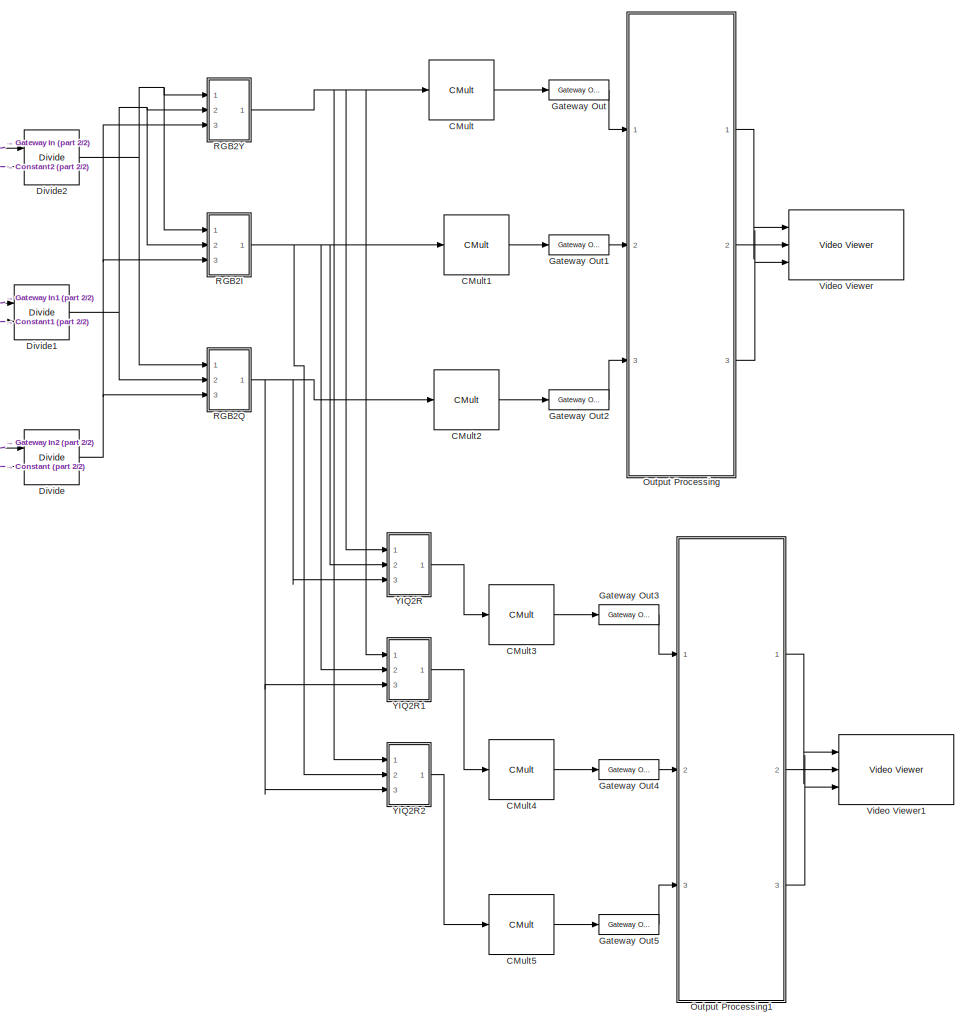
[diagram: root canvas - part 1/2, center side, full height]
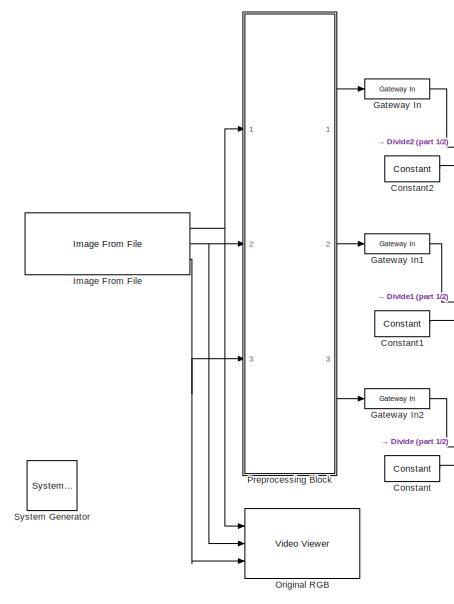
[diagram: root canvas - part 2/2, top left region]
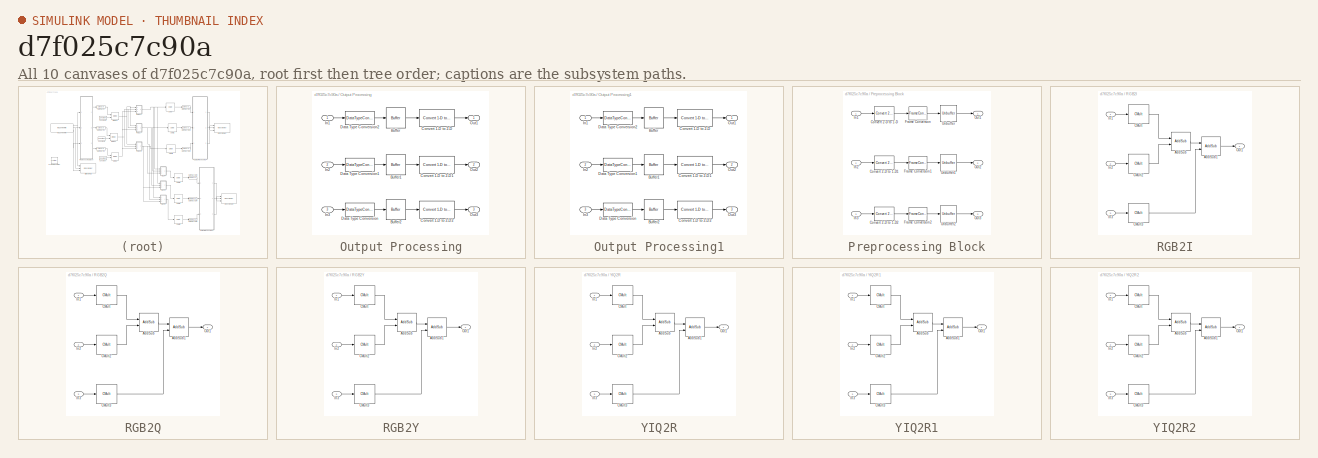
[diagram: thumbnail index - all 10 canvases of the model, root first then tree order]
MODEL slx_d7f025c7c90a
KIND model
BLOCK [Reference]  System Generator  REF=xbsIndex_r4/ System Generator
  AttributesFormatString = System\nGenerator
  Impl_file = ISE Defaults
  Ports = []
  SourceBlock = xbsIndex_r4/ System Generator
  SourceType = Xilinx System Generator Block
  Synth_file = XST Defaults
  Tag = genX
  UserDataPersistent = on
  block_type = sysgen
  clock_wrapper = Clock Enables
  core_generation = According to Block Masks
  dbl_ovrd = According to Block Masks
  dcm_input_clock_period = 10
  deprecated_control = off
  directory = ./netlist
  eval_field = 0
  has_advanced_control = 0
  incr_netlist = off
  infoedit = System Generator
  package = ff1156
  part = xc6vlx130t
  proj_type = Project Navigator
  run_coregen = off
  sg_icon_stat = 50,50,0,0,token,white,0,58c5b5770fe5f7c311f53dbc6e73f0f6,right,,[ ],[ ]
  sg_mask_display = fprintf('','COMMENT: begin icon graphics');\npatch([0 50 50 0 0 ],[0 0 50 50 0 ],[1 1 1 ]);\npatch([1.6375 16.81 27.31 37.81 48.31 27.31 12.1375 1.6375 ],[36.655 36.655 47.155 36.655 47.155 47.155 47.155 36.655 ],[0.933333 0.203922 0.141176 ]);\npatch([12.1375 27.31 16.81 1.6375 12.1375 ],[26.155 26.155 36.655 36.655 26.155 ],[0.698039 0.0313725 0.219608 ]);\npatch([1.6375 16.81 27.31 12.1375 1.6375 ]...<+327ch>
  sggui_pos = 691,174,464,470
  simulink_period = 1
  speed = -1
  synthesis_tool = XST
  sysclk_period = 10
  testbench = off
  trim_vbits = Everywhere in SubSystem
  xilinxfamily = virtex6
BLOCK [Reference] CMult  REF=xbsIndex_r4/CMult
  Ports = [1, 1]
  SourceBlock = xbsIndex_r4/CMult
  SourceType = Xilinx Constant Multiplier Block
  arith_type = Signed  (2's comp)
  bin_pt = 14
  block_type = cmult
  const = 255
  const_bin_pt = 14
  const_n_bits = 16
  dbl_ovrd = off
  en = off
  exp_bits = 8
  float_type = Double
  fraction_bits = 24
  gui_display_data_type = Floating-point
  has_advanced_control = 0
  latency = 0
  mem_type = Distributed RAM
  n_bits = 16
  overflow = Wrap
  pipeline = off
  precision = Full
  quantization = Truncate
  sg_icon_stat = 65,60,1,1,white,blue,2,9597a986,right,,[ ],[ ]
  sg_mask_display = fprintf('','COMMENT: begin icon graphics');\npatch([0 65 0 0 ],[0 30 60 0 ],[0.77 0.82 0.91 ]);\nplot([0 65 0 0 ],[0 30 60 0 ]);\npatch([5.07 12.006 16.806 21.606 26.406 16.806 9.87 5.07 ],[35.328 35.328 40.128 35.328 40.128 40.128 40.128 35.328 ],[1 1 1 ]);\npatch([9.87 16.806 12.006 5.07 9.87 ],[30.528 30.528 35.328 35.328 30.528 ],[0.931 0.946 0.973 ]);\npatch([5.07 12.006 16.806 9.87 5.07 ],[25.728...<+340ch>  <repeated x6 — deduplicated; at blocks: CMult, CMult1, CMult2, CMult3, CMult4, CMult5>
  sggui_pos = -1,-1,-1,-1
  use_behavioral_HDL = off
  xl_area = [0,0,0,0,0,0,0]
  xl_use_area = off
BLOCK [Reference] CMult1  REF=xbsIndex_r4/CMult
  Ports = [1, 1]
  SourceBlock = xbsIndex_r4/CMult
  SourceType = Xilinx Constant Multiplier Block
  arith_type = Signed  (2's comp)
  bin_pt = 14
  block_type = cmult
  const = 255
  const_bin_pt = 14
  const_n_bits = 16
  dbl_ovrd = off
  en = off
  exp_bits = 8
  float_type = Double
  fraction_bits = 24
  gui_display_data_type = Floating-point
  has_advanced_control = 0
  latency = 0
  mem_type = Distributed RAM
  n_bits = 16
  overflow = Wrap
  pipeline = off
  precision = Full
  quantization = Truncate
  sg_icon_stat = 65,60,1,1,white,blue,2,9597a986,right,,[ ],[ ]
  sggui_pos = -1,-1,-1,-1
  use_behavioral_HDL = off
  xl_area = [0,0,0,0,0,0,0]
  xl_use_area = off
BLOCK [Reference] CMult2  REF=xbsIndex_r4/CMult
  Ports = [1, 1]
  SourceBlock = xbsIndex_r4/CMult
  SourceType = Xilinx Constant Multiplier Block
  arith_type = Signed  (2's comp)
  bin_pt = 14
  block_type = cmult
  const = 255
  const_bin_pt = 14
  const_n_bits = 16
  dbl_ovrd = off
  en = off
  exp_bits = 8
  float_type = Double
  fraction_bits = 24
  gui_display_data_type = Floating-point
  has_advanced_control = 0
  latency = 0
  mem_type = Distributed RAM
  n_bits = 16
  overflow = Wrap
  pipeline = off
  precision = Full
  quantization = Truncate
  sg_icon_stat = 65,60,1,1,white,blue,2,9597a986,right,,[ ],[ ]
  sggui_pos = -1,-1,-1,-1
  use_behavioral_HDL = off
  xl_area = [0,0,0,0,0,0,0]
  xl_use_area = off
BLOCK [Reference] CMult3  REF=xbsIndex_r4/CMult
  Ports = [1, 1]
  SourceBlock = xbsIndex_r4/CMult
  SourceType = Xilinx Constant Multiplier Block
  arith_type = Signed  (2's comp)
  bin_pt = 14
  block_type = cmult
  const = 255
  const_bin_pt = 14
  const_n_bits = 16
  dbl_ovrd = off
  en = off
  exp_bits = 8
  float_type = Double
  fraction_bits = 24
  gui_display_data_type = Floating-point
  has_advanced_control = 0
  latency = 0
  mem_type = Distributed RAM
  n_bits = 16
  overflow = Wrap
  pipeline = off
  precision = Full
  quantization = Truncate
  sg_icon_stat = 65,60,1,1,white,blue,2,9597a986,right,,[ ],[ ]
  sggui_pos = -1,-1,-1,-1
  use_behavioral_HDL = off
  xl_area = [0,0,0,0,0,0,0]
  xl_use_area = off
BLOCK [Reference] CMult4  REF=xbsIndex_r4/CMult
  Ports = [1, 1]
  SourceBlock = xbsIndex_r4/CMult
  SourceType = Xilinx Constant Multiplier Block
  arith_type = Signed  (2's comp)
  bin_pt = 14
  block_type = cmult
  const = 255
  const_bin_pt = 14
  const_n_bits = 16
  dbl_ovrd = off
  en = off
  exp_bits = 8
  float_type = Double
  fraction_bits = 24
  gui_display_data_type = Floating-point
  has_advanced_control = 0
  latency = 0
  mem_type = Distributed RAM
  n_bits = 16
  overflow = Wrap
  pipeline = off
  precision = Full
  quantization = Truncate
  sg_icon_stat = 65,60,1,1,white,blue,2,9597a986,right,,[ ],[ ]
  sggui_pos = -1,-1,-1,-1
  use_behavioral_HDL = off
  xl_area = [0,0,0,0,0,0,0]
  xl_use_area = off
BLOCK [Reference] CMult5  REF=xbsIndex_r4/CMult
  Ports = [1, 1]
  SourceBlock = xbsIndex_r4/CMult
  SourceType = Xilinx Constant Multiplier Block
  arith_type = Signed  (2's comp)
  bin_pt = 14
  block_type = cmult
  const = 255
  const_bin_pt = 14
  const_n_bits = 16
  dbl_ovrd = off
  en = off
  exp_bits = 8
  float_type = Double
  fraction_bits = 24
  gui_display_data_type = Floating-point
  has_advanced_control = 0
  latency = 0
  mem_type = Distributed RAM
  n_bits = 16
  overflow = Wrap
  pipeline = off
  precision = Full
  quantization = Truncate
  sg_icon_stat = 65,60,1,1,white,blue,2,9597a986,right,,[ ],[ ]
  sggui_pos = -1,-1,-1,-1
  use_behavioral_HDL = off
  xl_area = [0,0,0,0,0,0,0]
  xl_use_area = off
BLOCK [Reference] Constant  REF=xbsIndex_r4/Constant
  Ports = [0, 1]
  SourceBlock = xbsIndex_r4/Constant
  SourceType = Xilinx Constant Block Block
  arith_type = Floating-point
  bin_pt = 14
  block_type = constant
  carry = CIN
  const = 255
  dbl_ovrd = off
  dsp48_infoedit = The use of this block for DSP48 instructions is deprecated.  Please use the Opmode block.
  equ = P=C
  exp_width = 8
  explicit_period = off
  frac_width = 24
  gui_display_data_type = Floating-point
  has_advanced_control = 0
  inp1 = P
  inp2 = PCIN>>17
  n_bits = 16
  opr = +
  opselect = C
  period = 1
  preci_type = Double
  sg_icon_stat = 55,26,0,1,white,blue,0,13fa6234,right,,[ ],[ ]
  sg_mask_display = fprintf('','COMMENT: begin icon graphics');\npatch([0 55 55 0 0 ],[0 0 26 26 0 ],[0.77 0.82 0.91 ]);\nplot([0 55 55 0 0 ],[0 0 26 26 0 ]);\npatch([20.325 24.66 27.66 30.66 33.66 27.66 23.325 20.325 ],[16.33 16.33 19.33 16.33 19.33 19.33 19.33 16.33 ],[1 1 1 ]);\npatch([23.325 27.66 24.66 20.325 23.325 ],[13.33 13.33 16.33 16.33 13.33 ],[0.931 0.946 0.973 ]);\npatch([20.325 24.66 27.66 23.325 20.325 ],[...<+325ch>  <repeated x3 — deduplicated; at blocks: Constant, Constant1, Constant2>
  sggui_pos = -1,-1,-1,-1
BLOCK [Reference] Constant1  REF=xbsIndex_r4/Constant
  Ports = [0, 1]
  SourceBlock = xbsIndex_r4/Constant
  SourceType = Xilinx Constant Block Block
  arith_type = Floating-point
  bin_pt = 14
  block_type = constant
  carry = CIN
  const = 255
  dbl_ovrd = off
  dsp48_infoedit = The use of this block for DSP48 instructions is deprecated.  Please use the Opmode block.
  equ = P=C
  exp_width = 8
  explicit_period = off
  frac_width = 24
  gui_display_data_type = Floating-point
  has_advanced_control = 0
  inp1 = P
  inp2 = PCIN>>17
  n_bits = 16
  opr = +
  opselect = C
  period = 1
  preci_type = Double
  sg_icon_stat = 55,26,0,1,white,blue,0,13fa6234,right,,[ ],[ ]
  sggui_pos = -1,-1,-1,-1
BLOCK [Reference] Constant2  REF=xbsIndex_r4/Constant
  Ports = [0, 1]
  SourceBlock = xbsIndex_r4/Constant
  SourceType = Xilinx Constant Block Block
  arith_type = Floating-point
  bin_pt = 14
  block_type = constant
  carry = CIN
  const = 255
  dbl_ovrd = off
  dsp48_infoedit = The use of this block for DSP48 instructions is deprecated.  Please use the Opmode block.
  equ = P=C
  exp_width = 8
  explicit_period = off
  frac_width = 24
  gui_display_data_type = Floating-point
  has_advanced_control = 0
  inp1 = P
  inp2 = PCIN>>17
  n_bits = 16
  opr = +
  opselect = C
  period = 1
  preci_type = Double
  sg_icon_stat = 55,26,0,1,white,blue,0,13fa6234,right,,[ ],[ ]
  sggui_pos = -1,-1,-1,-1
BLOCK [Reference] Divide  REF=xbsIndex_r4/Divide
  Ports = [2, 1]
  SourceBlock = xbsIndex_r4/Divide
  SourceType = Xilinx Divider Block
  algorithm_type = High_Radix
  axi_optimize_goal = Resources
  block_type = divide
  en = off
  flow_control = NonBlocking
  fpo_op_type = mergeddivide
  fractional_width = 16
  has_a_tlast = off
  has_a_tuser = off
  has_advanced_control = 0
  has_b_tlast = off
  has_b_tuser = off
  has_divide_by_zero = off
  has_invalid_op = off
  has_overflow = off
  has_result_tready = off
  has_underflow = off
  infoedit = Blocking: Wait for data on all inputs, allow back-pressure.<br>NonBlocking: operate every cycle in which all inputs are valid, no back-pressure.
  infoedit1 = Specify output fraction-width for Fixed-point division.
  latency = 0
  rate = 1
  result_tlast_behv = Pass_A_TLAST
  sg_icon_stat = 55,55,2,1,white,blue,0,857da21d,right,,[ ],[ ]
  sg_mask_display = fprintf('','COMMENT: begin icon graphics');\npatch([0 55 55 0 0 ],[0 0 55 55 0 ],[0.77 0.82 0.91 ]);\nplot([0 55 55 0 0 ],[0 0 55 55 0 ]);\npatch([11.425 21.54 28.54 35.54 42.54 28.54 18.425 11.425 ],[34.77 34.77 41.77 34.77 41.77 41.77 41.77 34.77 ],[1 1 1 ]);\npatch([18.425 28.54 21.54 11.425 18.425 ],[27.77 27.77 34.77 34.77 27.77 ],[0.931 0.946 0.973 ]);\npatch([11.425 21.54 28.54 18.425 11.425 ],[...<+412ch>  <repeated x3 — deduplicated; at blocks: Divide, Divide1, Divide2>
  sggui_pos = -1,-1,-1,-1
  xl_area = [0,0,0,0,0,0,0]
  xl_use_area = off
BLOCK [Reference] Divide1  REF=xbsIndex_r4/Divide
  Ports = [2, 1]
  SourceBlock = xbsIndex_r4/Divide
  SourceType = Xilinx Divider Block
  algorithm_type = High_Radix
  axi_optimize_goal = Resources
  block_type = divide
  en = off
  flow_control = NonBlocking
  fpo_op_type = mergeddivide
  fractional_width = 16
  has_a_tlast = off
  has_a_tuser = off
  has_advanced_control = 0
  has_b_tlast = off
  has_b_tuser = off
  has_divide_by_zero = off
  has_invalid_op = off
  has_overflow = off
  has_result_tready = off
  has_underflow = off
  infoedit = Blocking: Wait for data on all inputs, allow back-pressure.<br>NonBlocking: operate every cycle in which all inputs are valid, no back-pressure.
  infoedit1 = Specify output fraction-width for Fixed-point division.
  latency = 0
  rate = 1
  result_tlast_behv = Pass_A_TLAST
  sg_icon_stat = 55,55,2,1,white,blue,0,857da21d,right,,[ ],[ ]
  sggui_pos = -1,-1,-1,-1
  xl_area = [0,0,0,0,0,0,0]
  xl_use_area = off
BLOCK [Reference] Divide2  REF=xbsIndex_r4/Divide
  Ports = [2, 1]
  SourceBlock = xbsIndex_r4/Divide
  SourceType = Xilinx Divider Block
  algorithm_type = High_Radix
  axi_optimize_goal = Resources
  block_type = divide
  en = off
  flow_control = NonBlocking
  fpo_op_type = mergeddivide
  fractional_width = 16
  has_a_tlast = off
  has_a_tuser = off
  has_advanced_control = 0
  has_b_tlast = off
  has_b_tuser = off
  has_divide_by_zero = off
  has_invalid_op = off
  has_overflow = off
  has_result_tready = off
  has_underflow = off
  infoedit = Blocking: Wait for data on all inputs, allow back-pressure.<br>NonBlocking: operate every cycle in which all inputs are valid, no back-pressure.
  infoedit1 = Specify output fraction-width for Fixed-point division.
  latency = 0
  rate = 1
  result_tlast_behv = Pass_A_TLAST
  sg_icon_stat = 55,55,2,1,white,blue,0,857da21d,right,,[ ],[ ]
  sggui_pos = -1,-1,-1,-1
  xl_area = [0,0,0,0,0,0,0]
  xl_use_area = off
BLOCK [Reference] Gateway In  REF=xbsIndex_r4/Gateway In
  ADCChannel = '1'
  LOCs = {}
  Ports = [1, 1]
  SourceBlock = xbsIndex_r4/Gateway In
  SourceType = Xilinx Gateway In Block
  UseAsADC = off
  arith_type = Floating-point
  bin_pt = 0
  block_type = gatewayin
  dbl_ovrd = off
  exp_width = 8
  frac_width = 24
  gui_display_data_type = Floating-point
  has_advanced_control = 0
  hdl_port = on
  infoedit = Gateway in block.  Converts inputs of type Simulink integer, single, double and fixed-point to  Xilinx fixed-point or floating-point data type.<br><br>Hardware notes:  In hardware these blocks become top level input ports.  <repeated x3 — deduplicated; at blocks: Gateway In, Gateway In1, Gateway In2>
  inherit_from_input = off
  locs_specified = off
  n_bits = 8
  overflow = Saturate
  period = 1
  preci_type = Double
  quantization = Round  (unbiased: +/- Inf)
  sg_icon_stat = 65,20,1,1,white,yellow,1,00d3666e,right,,[ ],[ ]
  sg_mask_display = fprintf('','COMMENT: begin icon graphics');\npatch([0 65 65 0 0 ],[0 0 20 20 0 ],[0.95 0.93 0.65 ]);\nplot([0 65 65 0 0 ],[0 0 20 20 0 ]);\npatch([27.55 30.44 32.44 34.44 36.44 32.44 29.55 27.55 ],[12.22 12.22 14.22 12.22 14.22 14.22 14.22 12.22 ],[1 1 1 ]);\npatch([29.55 32.44 30.44 27.55 29.55 ],[10.22 10.22 12.22 12.22 10.22 ],[0.985 0.979 0.895 ]);\npatch([27.55 30.44 32.44 29.55 27.55 ],[8.22 8.22...<+383ch>  <repeated x3 — deduplicated; at blocks: Gateway In, Gateway In1, Gateway In2>
  sggui_pos = -1,-1,-1,-1
  timing_constraint = None
  xl_area = [0,0,0,0,0,0,0]
  xl_use_area = off
BLOCK [Reference] Gateway In1  REF=xbsIndex_r4/Gateway In
  ADCChannel = '1'
  LOCs = {}
  Ports = [1, 1]
  SourceBlock = xbsIndex_r4/Gateway In
  SourceType = Xilinx Gateway In Block
  UseAsADC = off
  arith_type = Floating-point
  bin_pt = 0
  block_type = gatewayin
  dbl_ovrd = off
  exp_width = 8
  frac_width = 24
  gui_display_data_type = Floating-point
  has_advanced_control = 0
  hdl_port = on
  inherit_from_input = off
  locs_specified = off
  n_bits = 8
  overflow = Saturate
  period = 1
  preci_type = Double
  quantization = Round  (unbiased: +/- Inf)
  sg_icon_stat = 65,20,1,1,white,yellow,1,00d3666e,right,,[ ],[ ]
  sggui_pos = -1,-1,-1,-1
  timing_constraint = None
  xl_area = [0,0,0,0,0,0,0]
  xl_use_area = off
BLOCK [Reference] Gateway In2  REF=xbsIndex_r4/Gateway In
  ADCChannel = '1'
  LOCs = {}
  Ports = [1, 1]
  SourceBlock = xbsIndex_r4/Gateway In
  SourceType = Xilinx Gateway In Block
  UseAsADC = off
  arith_type = Floating-point
  bin_pt = 0
  block_type = gatewayin
  dbl_ovrd = off
  exp_width = 8
  frac_width = 24
  gui_display_data_type = Floating-point
  has_advanced_control = 0
  hdl_port = on
  inherit_from_input = off
  locs_specified = off
  n_bits = 8
  overflow = Saturate
  period = 1
  preci_type = Double
  quantization = Round  (unbiased: +/- Inf)
  sg_icon_stat = 65,20,1,1,white,yellow,1,00d3666e,right,,[ ],[ ]
  sggui_pos = -1,-1,-1,-1
  timing_constraint = None
  xl_area = [0,0,0,0,0,0,0]
  xl_use_area = off
BLOCK [Reference] Gateway Out  REF=xbsIndex_r4/Gateway Out
  DACChannel = '1'
  LOCs = {}
  Ports = [1, 1]
  SourceBlock = xbsIndex_r4/Gateway Out
  SourceType = Xilinx Gateway Out Block
  UseAsDAC = off
  block_type = gatewayout
  has_advanced_control = 0
  hdl_port = on
  infoedit = Gateway out block.  Converts Xilinx fixed-point or floating-point type inputs into ouputs of type Simulink integer, single, double, or fixed-point.<br><br>Hardware notes:  In hardware these blocks become top level output ports or are discarded, depending on how they are configured.  <repeated x6 — deduplicated; at blocks: Gateway Out, Gateway Out1, Gateway Out2, Gateway Out3, Gateway Out4, Gateway Out5>
  inherit_from_input = on
  locs_specified = off
  sg_icon_stat = 60,20,1,1,white,yellow,1,cc31b7ac,right,,[ ],[ ]
  sg_mask_display = fprintf('','COMMENT: begin icon graphics');\npatch([0 60 60 0 0 ],[0 0 20 20 0 ],[0.95 0.93 0.65 ]);\nplot([0 60 60 0 0 ],[0 0 20 20 0 ]);\npatch([25.55 28.44 30.44 32.44 34.44 30.44 27.55 25.55 ],[12.22 12.22 14.22 12.22 14.22 14.22 14.22 12.22 ],[1 1 1 ]);\npatch([27.55 30.44 28.44 25.55 27.55 ],[10.22 10.22 12.22 12.22 10.22 ],[0.985 0.979 0.895 ]);\npatch([25.55 28.44 30.44 27.55 25.55 ],[8.22 8.22...<+384ch>  <repeated x6 — deduplicated; at blocks: Gateway Out, Gateway Out1, Gateway Out2, Gateway Out3, Gateway Out4, Gateway Out5>
  sggui_pos = -1,-1,-1,-1
  timing_constraint = None
  xl_area = [0,0,0,0,0,0,0]
  xl_use_area = off
BLOCK [Reference] Gateway Out1  REF=xbsIndex_r4/Gateway Out
  DACChannel = '1'
  LOCs = {}
  Ports = [1, 1]
  SourceBlock = xbsIndex_r4/Gateway Out
  SourceType = Xilinx Gateway Out Block
  UseAsDAC = off
  block_type = gatewayout
  has_advanced_control = 0
  hdl_port = on
  inherit_from_input = on
  locs_specified = off
  sg_icon_stat = 60,20,1,1,white,yellow,1,cc31b7ac,right,,[ ],[ ]
  sggui_pos = -1,-1,-1,-1
  timing_constraint = None
  xl_area = [0,0,0,0,0,0,0]
  xl_use_area = off
BLOCK [Reference] Gateway Out2  REF=xbsIndex_r4/Gateway Out
  DACChannel = '1'
  LOCs = {}
  Ports = [1, 1]
  SourceBlock = xbsIndex_r4/Gateway Out
  SourceType = Xilinx Gateway Out Block
  UseAsDAC = off
  block_type = gatewayout
  has_advanced_control = 0
  hdl_port = on
  inherit_from_input = on
  locs_specified = off
  sg_icon_stat = 60,20,1,1,white,yellow,1,cc31b7ac,right,,[ ],[ ]
  sggui_pos = -1,-1,-1,-1
  timing_constraint = None
  xl_area = [0,0,0,0,0,0,0]
  xl_use_area = off
BLOCK [Reference] Gateway Out3  REF=xbsIndex_r4/Gateway Out
  DACChannel = '1'
  LOCs = {}
  Ports = [1, 1]
  SourceBlock = xbsIndex_r4/Gateway Out
  SourceType = Xilinx Gateway Out Block
  UseAsDAC = off
  block_type = gatewayout
  has_advanced_control = 0
  hdl_port = on
  inherit_from_input = on
  locs_specified = off
  sg_icon_stat = 60,20,1,1,white,yellow,1,cc31b7ac,right,,[ ],[ ]
  sggui_pos = -1,-1,-1,-1
  timing_constraint = None
  xl_area = [0,0,0,0,0,0,0]
  xl_use_area = off
BLOCK [Reference] Gateway Out4  REF=xbsIndex_r4/Gateway Out
  DACChannel = '1'
  LOCs = {}
  Ports = [1, 1]
  SourceBlock = xbsIndex_r4/Gateway Out
  SourceType = Xilinx Gateway Out Block
  UseAsDAC = off
  block_type = gatewayout
  has_advanced_control = 0
  hdl_port = on
  inherit_from_input = on
  locs_specified = off
  sg_icon_stat = 60,20,1,1,white,yellow,1,cc31b7ac,right,,[ ],[ ]
  sggui_pos = -1,-1,-1,-1
  timing_constraint = None
  xl_area = [0,0,0,0,0,0,0]
  xl_use_area = off
BLOCK [Reference] Gateway Out5  REF=xbsIndex_r4/Gateway Out
  DACChannel = '1'
  LOCs = {}
  Ports = [1, 1]
  SourceBlock = xbsIndex_r4/Gateway Out
  SourceType = Xilinx Gateway Out Block
  UseAsDAC = off
  block_type = gatewayout
  has_advanced_control = 0
  hdl_port = on
  inherit_from_input = on
  locs_specified = off
  sg_icon_stat = 60,20,1,1,white,yellow,1,cc31b7ac,right,,[ ],[ ]
  sggui_pos = -1,-1,-1,-1
  timing_constraint = None
  xl_area = [0,0,0,0,0,0,0]
  xl_use_area = off
BLOCK [Reference] Image From File  REF=visionsources/Image From File
  FileName = <userpath>\Documents\MATLAB\4440\lena.jpg
  FractionLength = 15
  FractionLengthMode = User-defined
  ImageDataType = Inherit from input image
  OutPortLabels = R|G|B
  Ports = [0, 3]
  Signed = on
  SourceBlock = visionsources/Image From File
  SourceType = Image From File
  Tag = vipblks_nd
  Ts = inf
  WordLength = 16
  imagePorts = Separate color signals
  sdImageDataType = uint(8)
BLOCK [Reference] Original RGB  REF=visionsinks/Video Viewer
  AxisZoom = on
  DefaultConfigurationName = vipscopes.VideoViewerScopeCfg
  FigPos = [692 476 183 243]
  OpenAtMdlStart = on
  Ports = [3]
  SourceBlock = visionsinks/Video Viewer
  SourceType = Video Viewer
  UserDataPersistent = on
  colormapValue = gray(256)
  imagePorts = Separate color signals
  inputType = Obsolete7b
  maxInputVal = 255
  minInputVal = 0
  specRange = off
  trueSizedOnce = off
  useColorMap = off
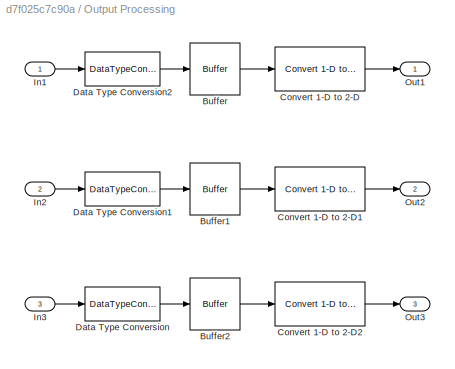
BLOCK [SubSystem] Output Processing
  FunctionWithSeparateData = off
  MaskHideContents = off
  MinAlgLoopOccurrences = off
  Opaque = off
  Ports = [3, 3]
  PropExecContextOutsideSubsystem = off
  RTWSystemCode = Auto
  RequestExecContextInheritance = off
BLOCK [Buffer] Output Processing/Buffer
  N = 100*100
  TreatMby1Signals = One channel
BLOCK [Buffer] Output Processing/Buffer1
  N = 100*100
  TreatMby1Signals = One channel
BLOCK [Buffer] Output Processing/Buffer2
  N = 100*100
  TreatMby1Signals = One channel
BLOCK [Reference] Output Processing/Convert 1-D to 2-D  REF=dspsigattribs/Convert 1-D to 2-D
  M = 100
  N = 100
  Ports = [1, 1]
  SourceBlock = dspsigattribs/Convert 1-D to 2-D
  SourceType = Convert 1-D to 2-D
  frameBasedOut = off
BLOCK [Reference] Output Processing/Convert 1-D to 2-D1  REF=dspsigattribs/Convert 1-D to 2-D
  M = 100
  N = 100
  Ports = [1, 1]
  SourceBlock = dspsigattribs/Convert 1-D to 2-D
  SourceType = Convert 1-D to 2-D
  frameBasedOut = off
BLOCK [Reference] Output Processing/Convert 1-D to 2-D2  REF=dspsigattribs/Convert 1-D to 2-D
  M = 100
  N = 100
  Ports = [1, 1]
  SourceBlock = dspsigattribs/Convert 1-D to 2-D
  SourceType = Convert 1-D to 2-D
  frameBasedOut = off
BLOCK [DataTypeConversion] Output Processing/Data Type Conversion
  OutDataTypeStr = uint8
  RndMeth = Floor
  SaturateOnIntegerOverflow = off
BLOCK [DataTypeConversion] Output Processing/Data Type Conversion1
  OutDataTypeStr = uint8
  RndMeth = Floor
  SaturateOnIntegerOverflow = off
BLOCK [DataTypeConversion] Output Processing/Data Type Conversion2
  OutDataTypeStr = uint8
  RndMeth = Floor
  SaturateOnIntegerOverflow = off
BLOCK [Inport] Output Processing/In1
  IconDisplay = Port number
BLOCK [Inport] Output Processing/In2
  IconDisplay = Port number
  Port = 2
BLOCK [Inport] Output Processing/In3
  IconDisplay = Port number
  Port = 3
BLOCK [Outport] Output Processing/Out1
  IconDisplay = Port number
BLOCK [Outport] Output Processing/Out2
  IconDisplay = Port number
  Port = 2
BLOCK [Outport] Output Processing/Out3
  IconDisplay = Port number
  Port = 3
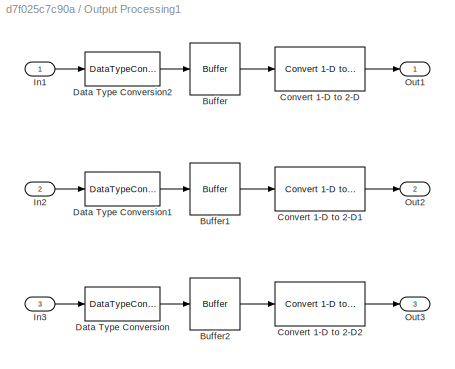
BLOCK [SubSystem] Output Processing1
  FunctionWithSeparateData = off
  MaskHideContents = off
  MinAlgLoopOccurrences = off
  Opaque = off
  Ports = [3, 3]
  PropExecContextOutsideSubsystem = off
  RTWSystemCode = Auto
  RequestExecContextInheritance = off
BLOCK [Buffer] Output Processing1/Buffer
  N = 100*100
  TreatMby1Signals = One channel
BLOCK [Buffer] Output Processing1/Buffer1
  N = 100*100
  TreatMby1Signals = One channel
BLOCK [Buffer] Output Processing1/Buffer2
  N = 100*100
  TreatMby1Signals = One channel
BLOCK [Reference] Output Processing1/Convert 1-D to 2-D  REF=dspsigattribs/Convert 1-D to 2-D
  M = 100
  N = 100
  Ports = [1, 1]
  SourceBlock = dspsigattribs/Convert 1-D to 2-D
  SourceType = Convert 1-D to 2-D
  frameBasedOut = off
BLOCK [Reference] Output Processing1/Convert 1-D to 2-D1  REF=dspsigattribs/Convert 1-D to 2-D
  M = 100
  N = 100
  Ports = [1, 1]
  SourceBlock = dspsigattribs/Convert 1-D to 2-D
  SourceType = Convert 1-D to 2-D
  frameBasedOut = off
BLOCK [Reference] Output Processing1/Convert 1-D to 2-D2  REF=dspsigattribs/Convert 1-D to 2-D
  M = 100
  N = 100
  Ports = [1, 1]
  SourceBlock = dspsigattribs/Convert 1-D to 2-D
  SourceType = Convert 1-D to 2-D
  frameBasedOut = off
BLOCK [DataTypeConversion] Output Processing1/Data Type Conversion
  OutDataTypeStr = uint8
  RndMeth = Floor
  SaturateOnIntegerOverflow = off
BLOCK [DataTypeConversion] Output Processing1/Data Type Conversion1
  OutDataTypeStr = uint8
  RndMeth = Floor
  SaturateOnIntegerOverflow = off
BLOCK [DataTypeConversion] Output Processing1/Data Type Conversion2
  OutDataTypeStr = uint8
  RndMeth = Floor
  SaturateOnIntegerOverflow = off
BLOCK [Inport] Output Processing1/In1
  IconDisplay = Port number
BLOCK [Inport] Output Processing1/In2
  IconDisplay = Port number
  Port = 2
BLOCK [Inport] Output Processing1/In3
  IconDisplay = Port number
  Port = 3
BLOCK [Outport] Output Processing1/Out1
  IconDisplay = Port number
BLOCK [Outport] Output Processing1/Out2
  IconDisplay = Port number
  Port = 2
BLOCK [Outport] Output Processing1/Out3
  IconDisplay = Port number
  Port = 3
BLOCK [SubSystem] Preprocessing Block
  FunctionWithSeparateData = off
  MaskHideContents = off
  MinAlgLoopOccurrences = off
  Opaque = off
  Ports = [3, 3]
  PropExecContextOutsideSubsystem = off
  RTWSystemCode = Auto
  RequestExecContextInheritance = off
BLOCK [Reference] Preprocessing Block/Convert 2-D to 1-D  REF=dspsigattribs/Convert 2-D to 1-D
  Ports = [1, 1]
  SourceBlock = dspsigattribs/Convert 2-D to 1-D
  SourceType = Convert 2-D to 1-D
BLOCK [Reference] Preprocessing Block/Convert 2-D to 1-D1  REF=dspsigattribs/Convert 2-D to 1-D
  Ports = [1, 1]
  SourceBlock = dspsigattribs/Convert 2-D to 1-D
  SourceType = Convert 2-D to 1-D
BLOCK [Reference] Preprocessing Block/Convert 2-D to 1-D2  REF=dspsigattribs/Convert 2-D to 1-D
  Ports = [1, 1]
  SourceBlock = dspsigattribs/Convert 2-D to 1-D
  SourceType = Convert 2-D to 1-D
BLOCK [FrameConversion] Preprocessing Block/Frame Conversion
  Ports = [1, 1]
BLOCK [FrameConversion] Preprocessing Block/Frame Conversion1
  Ports = [1, 1]
BLOCK [FrameConversion] Preprocessing Block/Frame Conversion2
  Ports = [1, 1]
BLOCK [Inport] Preprocessing Block/In1
  IconDisplay = Port number
BLOCK [Inport] Preprocessing Block/In2
  IconDisplay = Port number
  Port = 2
BLOCK [Inport] Preprocessing Block/In3
  IconDisplay = Port number
  Port = 3
BLOCK [Outport] Preprocessing Block/Out1
  IconDisplay = Port number
BLOCK [Outport] Preprocessing Block/Out2
  IconDisplay = Port number
  Port = 2
BLOCK [Outport] Preprocessing Block/Out3
  IconDisplay = Port number
  Port = 3
BLOCK [Unbuffer] Preprocessing Block/Unbuffer
  Ports = [1, 1]
  SampleBasedProcessing = Same as frame based
BLOCK [Unbuffer] Preprocessing Block/Unbuffer1
  Ports = [1, 1]
  SampleBasedProcessing = Same as frame based
BLOCK [Unbuffer] Preprocessing Block/Unbuffer2
  Ports = [1, 1]
  SampleBasedProcessing = Same as frame based
BLOCK [SubSystem] RGB2I
  FunctionWithSeparateData = off
  MaskHideContents = off
  MinAlgLoopOccurrences = off
  Opaque = off
  Ports = [3, 1]
  PropExecContextOutsideSubsystem = off
  RTWSystemCode = Auto
  RequestExecContextInheritance = off
BLOCK [Reference] RGB2I/AddSub  REF=xbsIndex_r4/AddSub
  Ports = [2, 1]
  SourceBlock = xbsIndex_r4/AddSub
  SourceType = Xilinx Adder/Subtracter Block
  arith_type = Unsigned
  bin_pt = 14
  block_type = addsub
  dbl_ovrd = off
  en = off
  has_advanced_control = 0
  hw_selection = Fabric
  latency = 0
  mode = Addition
  n_bits = 16
  overflow = Wrap
  pipelined = off
  precision = Full
  quantization = Truncate
  sg_icon_stat = 60,58,2,1,white,blue,0,e139daf6,right,,[ ],[ ]
  sg_mask_display = fprintf('','COMMENT: begin icon graphics');\npatch([0 60 60 0 0 ],[0 0 58 58 0 ],[0.77 0.82 0.91 ]);\nplot([0 60 60 0 0 ],[0 0 58 58 0 ]);\npatch([12.2 23.76 31.76 39.76 47.76 31.76 20.2 12.2 ],[37.88 37.88 45.88 37.88 45.88 45.88 45.88 37.88 ],[1 1 1 ]);\npatch([20.2 31.76 23.76 12.2 20.2 ],[29.88 29.88 37.88 37.88 29.88 ],[0.931 0.946 0.973 ]);\npatch([12.2 23.76 31.76 20.2 12.2 ],[21.88 21.88 29.88 ...<+411ch>  <repeated x12 — deduplicated; at blocks: AddSub, AddSub1>
  sggui_pos = -1,-1,-1,-1
  use_behavioral_HDL = off
  use_carryin = off
  use_carryout = off
  xl_area = [0,0,0,0,0,0,0]
  xl_use_area = off
BLOCK [Reference] RGB2I/AddSub1  REF=xbsIndex_r4/AddSub
  Ports = [2, 1]
  SourceBlock = xbsIndex_r4/AddSub
  SourceType = Xilinx Adder/Subtracter Block
  arith_type = Unsigned
  bin_pt = 14
  block_type = addsub
  dbl_ovrd = off
  en = off
  has_advanced_control = 0
  hw_selection = Fabric
  latency = 0
  mode = Addition
  n_bits = 16
  overflow = Wrap
  pipelined = off
  precision = Full
  quantization = Truncate
  sg_icon_stat = 60,58,2,1,white,blue,0,e139daf6,right,,[ ],[ ]
  sggui_pos = -1,-1,-1,-1
  use_behavioral_HDL = off
  use_carryin = off
  use_carryout = off
  xl_area = [0,0,0,0,0,0,0]
  xl_use_area = off
BLOCK [Reference] RGB2I/CMult  REF=xbsIndex_r4/CMult
  Ports = [1, 1]
  SourceBlock = xbsIndex_r4/CMult
  SourceType = Xilinx Constant Multiplier Block
  arith_type = Signed  (2's comp)
  bin_pt = 14
  block_type = cmult
  const = 0.596
  const_bin_pt = 8
  const_n_bits = 8
  dbl_ovrd = off
  en = off
  exp_bits = 8
  float_type = Double
  fraction_bits = 24
  gui_display_data_type = Floating-point
  has_advanced_control = 0
  latency = 0
  mem_type = Distributed RAM
  n_bits = 16
  overflow = Wrap
  pipeline = off
  precision = Full
  quantization = Truncate
  sg_icon_stat = 65,60,1,1,white,blue,2,663287b7,right,,[ ],[ ]
  sg_mask_display = fprintf('','COMMENT: begin icon graphics');\npatch([0 65 0 0 ],[0 30 60 0 ],[0.77 0.82 0.91 ]);\nplot([0 65 0 0 ],[0 30 60 0 ]);\npatch([5.07 12.006 16.806 21.606 26.406 16.806 9.87 5.07 ],[35.328 35.328 40.128 35.328 40.128 40.128 40.128 35.328 ],[1 1 1 ]);\npatch([9.87 16.806 12.006 5.07 9.87 ],[30.528 30.528 35.328 35.328 30.528 ],[0.931 0.946 0.973 ]);\npatch([5.07 12.006 16.806 9.87 5.07 ],[25.728...<+342ch>  <repeated x9 — deduplicated; at blocks: CMult, CMult3, CMult2>
  sggui_pos = 496,188,408,404
  use_behavioral_HDL = off
  xl_area = [0,0,0,0,0,0,0]
  xl_use_area = off
BLOCK [Reference] RGB2I/CMult2  REF=xbsIndex_r4/CMult
  Ports = [1, 1]
  SourceBlock = xbsIndex_r4/CMult
  SourceType = Xilinx Constant Multiplier Block
  arith_type = Signed  (2's comp)
  bin_pt = 14
  block_type = cmult
  const = -0.275
  const_bin_pt = 8
  const_n_bits = 8
  dbl_ovrd = off
  en = off
  exp_bits = 8
  float_type = Double
  fraction_bits = 24
  gui_display_data_type = Floating-point
  has_advanced_control = 0
  latency = 0
  mem_type = Distributed RAM
  n_bits = 16
  overflow = Wrap
  pipeline = off
  precision = Full
  quantization = Truncate
  sg_icon_stat = 65,60,1,1,white,blue,2,05bb2e70,right,,[ ],[ ]
  sg_mask_display = fprintf('','COMMENT: begin icon graphics');\npatch([0 65 0 0 ],[0 30 60 0 ],[0.77 0.82 0.91 ]);\nplot([0 65 0 0 ],[0 30 60 0 ]);\npatch([5.07 12.006 16.806 21.606 26.406 16.806 9.87 5.07 ],[35.328 35.328 40.128 35.328 40.128 40.128 40.128 35.328 ],[1 1 1 ]);\npatch([9.87 16.806 12.006 5.07 9.87 ],[30.528 30.528 35.328 35.328 30.528 ],[0.931 0.946 0.973 ]);\npatch([5.07 12.006 16.806 9.87 5.07 ],[25.728...<+345ch>  <repeated x6 — deduplicated; at blocks: CMult2, CMult3>
  sggui_pos = -1,-1,-1,-1
  use_behavioral_HDL = off
  xl_area = [0,0,0,0,0,0,0]
  xl_use_area = off
BLOCK [Reference] RGB2I/CMult3  REF=xbsIndex_r4/CMult
  Ports = [1, 1]
  SourceBlock = xbsIndex_r4/CMult
  SourceType = Xilinx Constant Multiplier Block
  arith_type = Signed  (2's comp)
  bin_pt = 14
  block_type = cmult
  const = -0.321
  const_bin_pt = 8
  const_n_bits = 8
  dbl_ovrd = off
  en = off
  exp_bits = 8
  float_type = Double
  fraction_bits = 24
  gui_display_data_type = Floating-point
  has_advanced_control = 0
  latency = 0
  mem_type = Distributed RAM
  n_bits = 16
  overflow = Wrap
  pipeline = off
  precision = Full
  quantization = Truncate
  sg_icon_stat = 65,60,1,1,white,blue,2,d76c3ded,right,,[ ],[ ]
  sggui_pos = 596,162,408,404
  use_behavioral_HDL = off
  xl_area = [0,0,0,0,0,0,0]
  xl_use_area = off
BLOCK [Inport] RGB2I/In1
  IconDisplay = Port number
BLOCK [Inport] RGB2I/In2
  IconDisplay = Port number
  Port = 2
BLOCK [Inport] RGB2I/In3
  IconDisplay = Port number
  Port = 3
BLOCK [Outport] RGB2I/Out1
  IconDisplay = Port number
BLOCK [SubSystem] RGB2Q
  FunctionWithSeparateData = off
  MaskHideContents = off
  MinAlgLoopOccurrences = off
  Opaque = off
  Ports = [3, 1]
  PropExecContextOutsideSubsystem = off
  RTWSystemCode = Auto
  RequestExecContextInheritance = off
BLOCK [Reference] RGB2Q/AddSub  REF=xbsIndex_r4/AddSub
  Ports = [2, 1]
  SourceBlock = xbsIndex_r4/AddSub
  SourceType = Xilinx Adder/Subtracter Block
  arith_type = Unsigned
  bin_pt = 14
  block_type = addsub
  dbl_ovrd = off
  en = off
  has_advanced_control = 0
  hw_selection = Fabric
  latency = 0
  mode = Addition
  n_bits = 16
  overflow = Wrap
  pipelined = off
  precision = Full
  quantization = Truncate
  sg_icon_stat = 60,58,2,1,white,blue,0,e139daf6,right,,[ ],[ ]
  sggui_pos = -1,-1,-1,-1
  use_behavioral_HDL = off
  use_carryin = off
  use_carryout = off
  xl_area = [0,0,0,0,0,0,0]
  xl_use_area = off
BLOCK [Reference] RGB2Q/AddSub1  REF=xbsIndex_r4/AddSub
  Ports = [2, 1]
  SourceBlock = xbsIndex_r4/AddSub
  SourceType = Xilinx Adder/Subtracter Block
  arith_type = Unsigned
  bin_pt = 14
  block_type = addsub
  dbl_ovrd = off
  en = off
  has_advanced_control = 0
  hw_selection = Fabric
  latency = 0
  mode = Addition
  n_bits = 16
  overflow = Wrap
  pipelined = off
  precision = Full
  quantization = Truncate
  sg_icon_stat = 60,58,2,1,white,blue,0,e139daf6,right,,[ ],[ ]
  sggui_pos = -1,-1,-1,-1
  use_behavioral_HDL = off
  use_carryin = off
  use_carryout = off
  xl_area = [0,0,0,0,0,0,0]
  xl_use_area = off
BLOCK [Reference] RGB2Q/CMult  REF=xbsIndex_r4/CMult
  Ports = [1, 1]
  SourceBlock = xbsIndex_r4/CMult
  SourceType = Xilinx Constant Multiplier Block
  arith_type = Signed  (2's comp)
  bin_pt = 14
  block_type = cmult
  const = 0.212
  const_bin_pt = 8
  const_n_bits = 8
  dbl_ovrd = off
  en = off
  exp_bits = 8
  float_type = Double
  fraction_bits = 24
  gui_display_data_type = Floating-point
  has_advanced_control = 0
  latency = 0
  mem_type = Distributed RAM
  n_bits = 16
  overflow = Wrap
  pipeline = off
  precision = Full
  quantization = Truncate
  sg_icon_stat = 65,60,1,1,white,blue,2,b0f845b3,right,,[ ],[ ]
  sggui_pos = -1,-1,-1,-1
  use_behavioral_HDL = off
  xl_area = [0,0,0,0,0,0,0]
  xl_use_area = off
BLOCK [Reference] RGB2Q/CMult2  REF=xbsIndex_r4/CMult
  Ports = [1, 1]
  SourceBlock = xbsIndex_r4/CMult
  SourceType = Xilinx Constant Multiplier Block
  arith_type = Signed  (2's comp)
  bin_pt = 14
  block_type = cmult
  const = -0.523
  const_bin_pt = 8
  const_n_bits = 8
  dbl_ovrd = off
  en = off
  exp_bits = 8
  float_type = Double
  fraction_bits = 24
  gui_display_data_type = Floating-point
  has_advanced_control = 0
  latency = 0
  mem_type = Distributed RAM
  n_bits = 16
  overflow = Wrap
  pipeline = off
  precision = Full
  quantization = Truncate
  sg_icon_stat = 65,60,1,1,white,blue,2,3e3e08f1,right,,[ ],[ ]
  sggui_pos = -1,-1,-1,-1
  use_behavioral_HDL = off
  xl_area = [0,0,0,0,0,0,0]
  xl_use_area = off
BLOCK [Reference] RGB2Q/CMult3  REF=xbsIndex_r4/CMult
  Ports = [1, 1]
  SourceBlock = xbsIndex_r4/CMult
  SourceType = Xilinx Constant Multiplier Block
  arith_type = Signed  (2's comp)
  bin_pt = 14
  block_type = cmult
  const = 0.311
  const_bin_pt = 8
  const_n_bits = 8
  dbl_ovrd = off
  en = off
  exp_bits = 8
  float_type = Double
  fraction_bits = 24
  gui_display_data_type = Floating-point
  has_advanced_control = 0
  latency = 0
  mem_type = Distributed RAM
  n_bits = 16
  overflow = Wrap
  pipeline = off
  precision = Full
  quantization = Truncate
  sg_icon_stat = 65,60,1,1,white,blue,2,d7443d43,right,,[ ],[ ]
  sggui_pos = -1,-1,-1,-1
  use_behavioral_HDL = off
  xl_area = [0,0,0,0,0,0,0]
  xl_use_area = off
BLOCK [Inport] RGB2Q/In1
  IconDisplay = Port number
BLOCK [Inport] RGB2Q/In2
  IconDisplay = Port number
  Port = 2
BLOCK [Inport] RGB2Q/In3
  IconDisplay = Port number
  Port = 3
BLOCK [Outport] RGB2Q/Out1
  IconDisplay = Port number
BLOCK [SubSystem] RGB2Y
  FunctionWithSeparateData = off
  MaskHideContents = off
  MinAlgLoopOccurrences = off
  Opaque = off
  Ports = [3, 1]
  PropExecContextOutsideSubsystem = off
  RTWSystemCode = Auto
  RequestExecContextInheritance = off
BLOCK [Reference] RGB2Y/AddSub  REF=xbsIndex_r4/AddSub
  Ports = [2, 1]
  SourceBlock = xbsIndex_r4/AddSub
  SourceType = Xilinx Adder/Subtracter Block
  arith_type = Unsigned
  bin_pt = 14
  block_type = addsub
  dbl_ovrd = off
  en = off
  has_advanced_control = 0
  hw_selection = Fabric
  latency = 0
  mode = Addition
  n_bits = 16
  overflow = Wrap
  pipelined = off
  precision = Full
  quantization = Truncate
  sg_icon_stat = 60,58,2,1,white,blue,0,e139daf6,right,,[ ],[ ]
  sggui_pos = -1,-1,-1,-1
  use_behavioral_HDL = off
  use_carryin = off
  use_carryout = off
  xl_area = [0,0,0,0,0,0,0]
  xl_use_area = off
BLOCK [Reference] RGB2Y/AddSub1  REF=xbsIndex_r4/AddSub
  Ports = [2, 1]
  SourceBlock = xbsIndex_r4/AddSub
  SourceType = Xilinx Adder/Subtracter Block
  arith_type = Unsigned
  bin_pt = 14
  block_type = addsub
  dbl_ovrd = off
  en = off
  has_advanced_control = 0
  hw_selection = Fabric
  latency = 0
  mode = Addition
  n_bits = 16
  overflow = Wrap
  pipelined = off
  precision = Full
  quantization = Truncate
  sg_icon_stat = 60,58,2,1,white,blue,0,e139daf6,right,,[ ],[ ]
  sggui_pos = -1,-1,-1,-1
  use_behavioral_HDL = off
  use_carryin = off
  use_carryout = off
  xl_area = [0,0,0,0,0,0,0]
  xl_use_area = off
BLOCK [Reference] RGB2Y/CMult  REF=xbsIndex_r4/CMult
  Ports = [1, 1]
  SourceBlock = xbsIndex_r4/CMult
  SourceType = Xilinx Constant Multiplier Block
  arith_type = Signed  (2's comp)
  bin_pt = 14
  block_type = cmult
  const = 0.299
  const_bin_pt = 8
  const_n_bits = 8
  dbl_ovrd = off
  en = off
  exp_bits = 8
  float_type = Double
  fraction_bits = 24
  gui_display_data_type = Floating-point
  has_advanced_control = 0
  latency = 0
  mem_type = Distributed RAM
  n_bits = 16
  overflow = Wrap
  pipeline = off
  precision = Full
  quantization = Truncate
  sg_icon_stat = 65,60,1,1,white,blue,2,f0dc7780,right,,[ ],[ ]
  sggui_pos = -1,-1,-1,-1
  use_behavioral_HDL = off
  xl_area = [0,0,0,0,0,0,0]
  xl_use_area = off
BLOCK [Reference] RGB2Y/CMult2  REF=xbsIndex_r4/CMult
  Ports = [1, 1]
  SourceBlock = xbsIndex_r4/CMult
  SourceType = Xilinx Constant Multiplier Block
  arith_type = Signed  (2's comp)
  bin_pt = 14
  block_type = cmult
  const = 0.587
  const_bin_pt = 8
  const_n_bits = 8
  dbl_ovrd = off
  en = off
  exp_bits = 8
  float_type = Double
  fraction_bits = 24
  gui_display_data_type = Floating-point
  has_advanced_control = 0
  latency = 0
  mem_type = Distributed RAM
  n_bits = 16
  overflow = Wrap
  pipeline = off
  precision = Full
  quantization = Truncate
  sg_icon_stat = 65,60,1,1,white,blue,2,1ae0dfa2,right,,[ ],[ ]
  sggui_pos = -1,-1,-1,-1
  use_behavioral_HDL = off
  xl_area = [0,0,0,0,0,0,0]
  xl_use_area = off
BLOCK [Reference] RGB2Y/CMult3  REF=xbsIndex_r4/CMult
  Ports = [1, 1]
  SourceBlock = xbsIndex_r4/CMult
  SourceType = Xilinx Constant Multiplier Block
  arith_type = Signed  (2's comp)
  bin_pt = 14
  block_type = cmult
  const = 0.114
  const_bin_pt = 8
  const_n_bits = 8
  dbl_ovrd = off
  en = off
  exp_bits = 8
  float_type = Double
  fraction_bits = 24
  gui_display_data_type = Floating-point
  has_advanced_control = 0
  latency = 0
  mem_type = Distributed RAM
  n_bits = 16
  overflow = Wrap
  pipeline = off
  precision = Full
  quantization = Truncate
  sg_icon_stat = 65,60,1,1,white,blue,2,bb219b46,right,,[ ],[ ]
  sggui_pos = -1,-1,-1,-1
  use_behavioral_HDL = off
  xl_area = [0,0,0,0,0,0,0]
  xl_use_area = off
BLOCK [Inport] RGB2Y/In1
  IconDisplay = Port number
BLOCK [Inport] RGB2Y/In2
  IconDisplay = Port number
  Port = 2
BLOCK [Inport] RGB2Y/In3
  IconDisplay = Port number
  Port = 3
BLOCK [Outport] RGB2Y/Out1
  IconDisplay = Port number
BLOCK [Reference] Video Viewer  REF=visionsinks/Video Viewer
  AxisZoom = on
  DefaultConfigurationName = vipscopes.VideoViewerScopeCfg
  FigPos = [437 462 320 274]
  OpenAtMdlStart = on
  Ports = [3]
  SourceBlock = visionsinks/Video Viewer
  SourceType = Video Viewer
  UserDataPersistent = on
  colormapValue = gray(256)
  imagePorts = Separate color signals
  inputType = Obsolete7b
  maxInputVal = 255
  minInputVal = 0
  specRange = off
  trueSizedOnce = off
  useColorMap = off
BLOCK [Reference] Video Viewer1  REF=visionsinks/Video Viewer
  AxisZoom = on
  DefaultConfigurationName = vipscopes.VideoViewerScopeCfg
  FigPos = [775 461 441 293]
  OpenAtMdlStart = on
  Ports = [3]
  SourceBlock = visionsinks/Video Viewer
  SourceType = Video Viewer
  UserDataPersistent = on
  colormapValue = gray(256)
  imagePorts = Separate color signals
  inputType = Obsolete7b
  maxInputVal = 255
  minInputVal = 0
  specRange = off
  trueSizedOnce = off
  useColorMap = off
BLOCK [SubSystem] YIQ2R
  FunctionWithSeparateData = off
  MaskHideContents = off
  MinAlgLoopOccurrences = off
  Opaque = off
  Ports = [3, 1]
  PropExecContextOutsideSubsystem = off
  RTWSystemCode = Auto
  RequestExecContextInheritance = off
BLOCK [Reference] YIQ2R/AddSub  REF=xbsIndex_r4/AddSub
  Ports = [2, 1]
  SourceBlock = xbsIndex_r4/AddSub
  SourceType = Xilinx Adder/Subtracter Block
  arith_type = Unsigned
  bin_pt = 14
  block_type = addsub
  dbl_ovrd = off
  en = off
  has_advanced_control = 0
  hw_selection = Fabric
  latency = 0
  mode = Addition
  n_bits = 16
  overflow = Wrap
  pipelined = off
  precision = Full
  quantization = Truncate
  sg_icon_stat = 60,58,2,1,white,blue,0,e139daf6,right,,[ ],[ ]
  sggui_pos = -1,-1,-1,-1
  use_behavioral_HDL = off
  use_carryin = off
  use_carryout = off
  xl_area = [0,0,0,0,0,0,0]
  xl_use_area = off
BLOCK [Reference] YIQ2R/AddSub1  REF=xbsIndex_r4/AddSub
  Ports = [2, 1]
  SourceBlock = xbsIndex_r4/AddSub
  SourceType = Xilinx Adder/Subtracter Block
  arith_type = Unsigned
  bin_pt = 14
  block_type = addsub
  dbl_ovrd = off
  en = off
  has_advanced_control = 0
  hw_selection = Fabric
  latency = 0
  mode = Addition
  n_bits = 16
  overflow = Wrap
  pipelined = off
  precision = Full
  quantization = Truncate
  sg_icon_stat = 60,58,2,1,white,blue,0,e139daf6,right,,[ ],[ ]
  sggui_pos = -1,-1,-1,-1
  use_behavioral_HDL = off
  use_carryin = off
  use_carryout = off
  xl_area = [0,0,0,0,0,0,0]
  xl_use_area = off
BLOCK [Reference] YIQ2R/CMult  REF=xbsIndex_r4/CMult
  Ports = [1, 1]
  SourceBlock = xbsIndex_r4/CMult
  SourceType = Xilinx Constant Multiplier Block
  arith_type = Signed  (2's comp)
  bin_pt = 14
  block_type = cmult
  const = 1
  const_bin_pt = 8
  const_n_bits = 8
  dbl_ovrd = off
  en = off
  exp_bits = 8
  float_type = Double
  fraction_bits = 24
  gui_display_data_type = Floating-point
  has_advanced_control = 0
  latency = 0
  mem_type = Distributed RAM
  n_bits = 16
  overflow = Wrap
  pipeline = off
  precision = Full
  quantization = Truncate
  sg_icon_stat = 65,60,1,1,white,blue,2,b841b069,right,,[ ],[ ]
  sg_mask_display = fprintf('','COMMENT: begin icon graphics');\npatch([0 65 0 0 ],[0 30 60 0 ],[0.77 0.82 0.91 ]);\nplot([0 65 0 0 ],[0 30 60 0 ]);\npatch([5.07 12.006 16.806 21.606 26.406 16.806 9.87 5.07 ],[35.328 35.328 40.128 35.328 40.128 40.128 40.128 35.328 ],[1 1 1 ]);\npatch([9.87 16.806 12.006 5.07 9.87 ],[30.528 30.528 35.328 35.328 30.528 ],[0.931 0.946 0.973 ]);\npatch([5.07 12.006 16.806 9.87 5.07 ],[25.728...<+338ch>  <repeated x3 — deduplicated; at blocks: CMult>
  sggui_pos = -1,-1,-1,-1
  use_behavioral_HDL = off
  xl_area = [0,0,0,0,0,0,0]
  xl_use_area = off
BLOCK [Reference] YIQ2R/CMult2  REF=xbsIndex_r4/CMult
  Ports = [1, 1]
  SourceBlock = xbsIndex_r4/CMult
  SourceType = Xilinx Constant Multiplier Block
  arith_type = Signed  (2's comp)
  bin_pt = 14
  block_type = cmult
  const = 0.965
  const_bin_pt = 8
  const_n_bits = 8
  dbl_ovrd = off
  en = off
  exp_bits = 8
  float_type = Double
  fraction_bits = 24
  gui_display_data_type = Floating-point
  has_advanced_control = 0
  latency = 0
  mem_type = Distributed RAM
  n_bits = 16
  overflow = Wrap
  pipeline = off
  precision = Full
  quantization = Truncate
  sg_icon_stat = 65,60,1,1,white,blue,2,15be7627,right,,[ ],[ ]
  sggui_pos = -1,-1,-1,-1
  use_behavioral_HDL = off
  xl_area = [0,0,0,0,0,0,0]
  xl_use_area = off
BLOCK [Reference] YIQ2R/CMult3  REF=xbsIndex_r4/CMult
  Ports = [1, 1]
  SourceBlock = xbsIndex_r4/CMult
  SourceType = Xilinx Constant Multiplier Block
  arith_type = Signed  (2's comp)
  bin_pt = 14
  block_type = cmult
  const = 0.621
  const_bin_pt = 8
  const_n_bits = 8
  dbl_ovrd = off
  en = off
  exp_bits = 8
  float_type = Double
  fraction_bits = 24
  gui_display_data_type = Floating-point
  has_advanced_control = 0
  latency = 0
  mem_type = Distributed RAM
  n_bits = 16
  overflow = Wrap
  pipeline = off
  precision = Full
  quantization = Truncate
  sg_icon_stat = 65,60,1,1,white,blue,2,8a238cf7,right,,[ ],[ ]
  sggui_pos = -1,-1,-1,-1
  use_behavioral_HDL = off
  xl_area = [0,0,0,0,0,0,0]
  xl_use_area = off
BLOCK [Inport] YIQ2R/In1
  IconDisplay = Port number
BLOCK [Inport] YIQ2R/In2
  IconDisplay = Port number
  Port = 2
BLOCK [Inport] YIQ2R/In3
  IconDisplay = Port number
  Port = 3
BLOCK [Outport] YIQ2R/Out1
  IconDisplay = Port number
BLOCK [SubSystem] YIQ2R1
  FunctionWithSeparateData = off
  MaskHideContents = off
  MinAlgLoopOccurrences = off
  Opaque = off
  Ports = [3, 1]
  PropExecContextOutsideSubsystem = off
  RTWSystemCode = Auto
  RequestExecContextInheritance = off
BLOCK [Reference] YIQ2R1/AddSub  REF=xbsIndex_r4/AddSub
  Ports = [2, 1]
  SourceBlock = xbsIndex_r4/AddSub
  SourceType = Xilinx Adder/Subtracter Block
  arith_type = Unsigned
  bin_pt = 14
  block_type = addsub
  dbl_ovrd = off
  en = off
  has_advanced_control = 0
  hw_selection = Fabric
  latency = 0
  mode = Addition
  n_bits = 16
  overflow = Wrap
  pipelined = off
  precision = Full
  quantization = Truncate
  sg_icon_stat = 60,58,2,1,white,blue,0,e139daf6,right,,[ ],[ ]
  sggui_pos = -1,-1,-1,-1
  use_behavioral_HDL = off
  use_carryin = off
  use_carryout = off
  xl_area = [0,0,0,0,0,0,0]
  xl_use_area = off
BLOCK [Reference] YIQ2R1/AddSub1  REF=xbsIndex_r4/AddSub
  Ports = [2, 1]
  SourceBlock = xbsIndex_r4/AddSub
  SourceType = Xilinx Adder/Subtracter Block
  arith_type = Unsigned
  bin_pt = 14
  block_type = addsub
  dbl_ovrd = off
  en = off
  has_advanced_control = 0
  hw_selection = Fabric
  latency = 0
  mode = Addition
  n_bits = 16
  overflow = Wrap
  pipelined = off
  precision = Full
  quantization = Truncate
  sg_icon_stat = 60,58,2,1,white,blue,0,e139daf6,right,,[ ],[ ]
  sggui_pos = -1,-1,-1,-1
  use_behavioral_HDL = off
  use_carryin = off
  use_carryout = off
  xl_area = [0,0,0,0,0,0,0]
  xl_use_area = off
BLOCK [Reference] YIQ2R1/CMult  REF=xbsIndex_r4/CMult
  Ports = [1, 1]
  SourceBlock = xbsIndex_r4/CMult
  SourceType = Xilinx Constant Multiplier Block
  arith_type = Signed  (2's comp)
  bin_pt = 14
  block_type = cmult
  const = 1
  const_bin_pt = 8
  const_n_bits = 8
  dbl_ovrd = off
  en = off
  exp_bits = 8
  float_type = Double
  fraction_bits = 24
  gui_display_data_type = Floating-point
  has_advanced_control = 0
  latency = 0
  mem_type = Distributed RAM
  n_bits = 16
  overflow = Wrap
  pipeline = off
  precision = Full
  quantization = Truncate
  sg_icon_stat = 65,60,1,1,white,blue,2,b841b069,right,,[ ],[ ]
  sggui_pos = -1,-1,-1,-1
  use_behavioral_HDL = off
  xl_area = [0,0,0,0,0,0,0]
  xl_use_area = off
BLOCK [Reference] YIQ2R1/CMult2  REF=xbsIndex_r4/CMult
  Ports = [1, 1]
  SourceBlock = xbsIndex_r4/CMult
  SourceType = Xilinx Constant Multiplier Block
  arith_type = Signed  (2's comp)
  bin_pt = 14
  block_type = cmult
  const = -0.272
  const_bin_pt = 8
  const_n_bits = 8
  dbl_ovrd = off
  en = off
  exp_bits = 8
  float_type = Double
  fraction_bits = 24
  gui_display_data_type = Floating-point
  has_advanced_control = 0
  latency = 0
  mem_type = Distributed RAM
  n_bits = 16
  overflow = Wrap
  pipeline = off
  precision = Full
  quantization = Truncate
  sg_icon_stat = 65,60,1,1,white,blue,2,98853a44,right,,[ ],[ ]
  sggui_pos = -1,-1,-1,-1
  use_behavioral_HDL = off
  xl_area = [0,0,0,0,0,0,0]
  xl_use_area = off
BLOCK [Reference] YIQ2R1/CMult3  REF=xbsIndex_r4/CMult
  Ports = [1, 1]
  SourceBlock = xbsIndex_r4/CMult
  SourceType = Xilinx Constant Multiplier Block
  arith_type = Signed  (2's comp)
  bin_pt = 14
  block_type = cmult
  const = -0.647
  const_bin_pt = 8
  const_n_bits = 8
  dbl_ovrd = off
  en = off
  exp_bits = 8
  float_type = Double
  fraction_bits = 24
  gui_display_data_type = Floating-point
  has_advanced_control = 0
  latency = 0
  mem_type = Distributed RAM
  n_bits = 16
  overflow = Wrap
  pipeline = off
  precision = Full
  quantization = Truncate
  sg_icon_stat = 65,60,1,1,white,blue,2,4881f238,right,,[ ],[ ]
  sggui_pos = -1,-1,-1,-1
  use_behavioral_HDL = off
  xl_area = [0,0,0,0,0,0,0]
  xl_use_area = off
BLOCK [Inport] YIQ2R1/In1
  IconDisplay = Port number
BLOCK [Inport] YIQ2R1/In2
  IconDisplay = Port number
  Port = 2
BLOCK [Inport] YIQ2R1/In3
  IconDisplay = Port number
  Port = 3
BLOCK [Outport] YIQ2R1/Out1
  IconDisplay = Port number
BLOCK [SubSystem] YIQ2R2
  FunctionWithSeparateData = off
  MaskHideContents = off
  MinAlgLoopOccurrences = off
  Opaque = off
  Ports = [3, 1]
  PropExecContextOutsideSubsystem = off
  RTWSystemCode = Auto
  RequestExecContextInheritance = off
BLOCK [Reference] YIQ2R2/AddSub  REF=xbsIndex_r4/AddSub
  Ports = [2, 1]
  SourceBlock = xbsIndex_r4/AddSub
  SourceType = Xilinx Adder/Subtracter Block
  arith_type = Unsigned
  bin_pt = 14
  block_type = addsub
  dbl_ovrd = off
  en = off
  has_advanced_control = 0
  hw_selection = Fabric
  latency = 0
  mode = Addition
  n_bits = 16
  overflow = Wrap
  pipelined = off
  precision = Full
  quantization = Truncate
  sg_icon_stat = 60,58,2,1,white,blue,0,e139daf6,right,,[ ],[ ]
  sggui_pos = -1,-1,-1,-1
  use_behavioral_HDL = off
  use_carryin = off
  use_carryout = off
  xl_area = [0,0,0,0,0,0,0]
  xl_use_area = off
BLOCK [Reference] YIQ2R2/AddSub1  REF=xbsIndex_r4/AddSub
  Ports = [2, 1]
  SourceBlock = xbsIndex_r4/AddSub
  SourceType = Xilinx Adder/Subtracter Block
  arith_type = Unsigned
  bin_pt = 14
  block_type = addsub
  dbl_ovrd = off
  en = off
  has_advanced_control = 0
  hw_selection = Fabric
  latency = 0
  mode = Addition
  n_bits = 16
  overflow = Wrap
  pipelined = off
  precision = Full
  quantization = Truncate
  sg_icon_stat = 60,58,2,1,white,blue,0,e139daf6,right,,[ ],[ ]
  sggui_pos = -1,-1,-1,-1
  use_behavioral_HDL = off
  use_carryin = off
  use_carryout = off
  xl_area = [0,0,0,0,0,0,0]
  xl_use_area = off
BLOCK [Reference] YIQ2R2/CMult  REF=xbsIndex_r4/CMult
  Ports = [1, 1]
  SourceBlock = xbsIndex_r4/CMult
  SourceType = Xilinx Constant Multiplier Block
  arith_type = Signed  (2's comp)
  bin_pt = 14
  block_type = cmult
  const = 1
  const_bin_pt = 8
  const_n_bits = 8
  dbl_ovrd = off
  en = off
  exp_bits = 8
  float_type = Double
  fraction_bits = 24
  gui_display_data_type = Floating-point
  has_advanced_control = 0
  latency = 0
  mem_type = Distributed RAM
  n_bits = 16
  overflow = Wrap
  pipeline = off
  precision = Full
  quantization = Truncate
  sg_icon_stat = 65,60,1,1,white,blue,2,b841b069,right,,[ ],[ ]
  sggui_pos = -1,-1,-1,-1
  use_behavioral_HDL = off
  xl_area = [0,0,0,0,0,0,0]
  xl_use_area = off
BLOCK [Reference] YIQ2R2/CMult2  REF=xbsIndex_r4/CMult
  Ports = [1, 1]
  SourceBlock = xbsIndex_r4/CMult
  SourceType = Xilinx Constant Multiplier Block
  arith_type = Signed  (2's comp)
  bin_pt = 14
  block_type = cmult
  const = -1.105
  const_bin_pt = 8
  const_n_bits = 8
  dbl_ovrd = off
  en = off
  exp_bits = 8
  float_type = Double
  fraction_bits = 24
  gui_display_data_type = Floating-point
  has_advanced_control = 0
  latency = 0
  mem_type = Distributed RAM
  n_bits = 16
  overflow = Wrap
  pipeline = off
  precision = Full
  quantization = Truncate
  sg_icon_stat = 65,60,1,1,white,blue,2,8dfa0f76,right,,[ ],[ ]
  sggui_pos = -1,-1,-1,-1
  use_behavioral_HDL = off
  xl_area = [0,0,0,0,0,0,0]
  xl_use_area = off
BLOCK [Reference] YIQ2R2/CMult3  REF=xbsIndex_r4/CMult
  Ports = [1, 1]
  SourceBlock = xbsIndex_r4/CMult
  SourceType = Xilinx Constant Multiplier Block
  arith_type = Signed  (2's comp)
  bin_pt = 14
  block_type = cmult
  const = 1.702
  const_bin_pt = 8
  const_n_bits = 8
  dbl_ovrd = off
  en = off
  exp_bits = 8
  float_type = Double
  fraction_bits = 24
  gui_display_data_type = Floating-point
  has_advanced_control = 0
  latency = 0
  mem_type = Distributed RAM
  n_bits = 16
  overflow = Wrap
  pipeline = off
  precision = Full
  quantization = Truncate
  sg_icon_stat = 65,60,1,1,white,blue,2,8394ddb8,right,,[ ],[ ]
  sggui_pos = -1,-1,-1,-1
  use_behavioral_HDL = off
  xl_area = [0,0,0,0,0,0,0]
  xl_use_area = off
BLOCK [Inport] YIQ2R2/In1
  IconDisplay = Port number
BLOCK [Inport] YIQ2R2/In2
  IconDisplay = Port number
  Port = 2
BLOCK [Inport] YIQ2R2/In3
  IconDisplay = Port number
  Port = 3
BLOCK [Outport] YIQ2R2/Out1
  IconDisplay = Port number
LINE CMult1:1 -> Gateway Out1:1
LINE CMult2:1 -> Gateway Out2:1
LINE CMult3:1 -> Gateway Out3:1
LINE CMult4:1 -> Gateway Out4:1
LINE CMult5:1 -> Gateway Out5:1
LINE CMult:1 -> Gateway Out:1
LINE Constant1:1 -> Divide1:2
LINE Constant2:1 -> Divide2:2
LINE Constant:1 -> Divide:2
NET Divide1:1 -> RGB2I:2, RGB2Q:2, RGB2Y:2
NET Divide2:1 -> RGB2I:1, RGB2Q:1, RGB2Y:1
NET Divide:1 -> RGB2I:3, RGB2Q:3, RGB2Y:3
LINE Gateway In1:1 -> Divide1:1
LINE Gateway In2:1 -> Divide:1
LINE Gateway In:1 -> Divide2:1
LINE Gateway Out1:1 -> Output Processing:2
LINE Gateway Out2:1 -> Output Processing:3
LINE Gateway Out3:1 -> Output Processing1:1
LINE Gateway Out4:1 -> Output Processing1:2
LINE Gateway Out5:1 -> Output Processing1:3
LINE Gateway Out:1 -> Output Processing:1
NET Image From File:1 -> Original RGB:1, Preprocessing Block:1
NET Image From File:2 -> Original RGB:2, Preprocessing Block:2
NET Image From File:3 -> Original RGB:3, Preprocessing Block:3
LINE Output Processing/Buffer1:1 -> Output Processing/Convert 1-D to 2-D1:1
LINE Output Processing/Buffer2:1 -> Output Processing/Convert 1-D to 2-D2:1
LINE Output Processing/Buffer:1 -> Output Processing/Convert 1-D to 2-D:1
LINE Output Processing/Convert 1-D to 2-D1:1 -> Output Processing/Out2:1
LINE Output Processing/Convert 1-D to 2-D2:1 -> Output Processing/Out3:1
LINE Output Processing/Convert 1-D to 2-D:1 -> Output Processing/Out1:1
LINE Output Processing/Data Type Conversion1:1 -> Output Processing/Buffer1:1
LINE Output Processing/Data Type Conversion2:1 -> Output Processing/Buffer:1
LINE Output Processing/Data Type Conversion:1 -> Output Processing/Buffer2:1
LINE Output Processing/In1:1 -> Output Processing/Data Type Conversion2:1
LINE Output Processing/In2:1 -> Output Processing/Data Type Conversion1:1
LINE Output Processing/In3:1 -> Output Processing/Data Type Conversion:1
LINE Output Processing1/Buffer1:1 -> Output Processing1/Convert 1-D to 2-D1:1
LINE Output Processing1/Buffer2:1 -> Output Processing1/Convert 1-D to 2-D2:1
LINE Output Processing1/Buffer:1 -> Output Processing1/Convert 1-D to 2-D:1
LINE Output Processing1/Convert 1-D to 2-D1:1 -> Output Processing1/Out2:1
LINE Output Processing1/Convert 1-D to 2-D2:1 -> Output Processing1/Out3:1
LINE Output Processing1/Convert 1-D to 2-D:1 -> Output Processing1/Out1:1
LINE Output Processing1/Data Type Conversion1:1 -> Output Processing1/Buffer1:1
LINE Output Processing1/Data Type Conversion2:1 -> Output Processing1/Buffer:1
LINE Output Processing1/Data Type Conversion:1 -> Output Processing1/Buffer2:1
LINE Output Processing1/In1:1 -> Output Processing1/Data Type Conversion2:1
LINE Output Processing1/In2:1 -> Output Processing1/Data Type Conversion1:1
LINE Output Processing1/In3:1 -> Output Processing1/Data Type Conversion:1
LINE Output Processing1:1 -> Video Viewer1:1
LINE Output Processing1:2 -> Video Viewer1:2
LINE Output Processing1:3 -> Video Viewer1:3
LINE Output Processing:1 -> Video Viewer:1
LINE Output Processing:2 -> Video Viewer:2
LINE Output Processing:3 -> Video Viewer:3
LINE Preprocessing Block/Convert 2-D to 1-D1:1 -> Preprocessing Block/Frame Conversion1:1
LINE Preprocessing Block/Convert 2-D to 1-D2:1 -> Preprocessing Block/Frame Conversion2:1
LINE Preprocessing Block/Convert 2-D to 1-D:1 -> Preprocessing Block/Frame Conversion:1
LINE Preprocessing Block/Frame Conversion1:1 -> Preprocessing Block/Unbuffer1:1
LINE Preprocessing Block/Frame Conversion2:1 -> Preprocessing Block/Unbuffer2:1
LINE Preprocessing Block/Frame Conversion:1 -> Preprocessing Block/Unbuffer:1
LINE Preprocessing Block/In1:1 -> Preprocessing Block/Convert 2-D to 1-D:1
LINE Preprocessing Block/In2:1 -> Preprocessing Block/Convert 2-D to 1-D1:1
LINE Preprocessing Block/In3:1 -> Preprocessing Block/Convert 2-D to 1-D2:1
LINE Preprocessing Block/Unbuffer1:1 -> Preprocessing Block/Out2:1
LINE Preprocessing Block/Unbuffer2:1 -> Preprocessing Block/Out3:1
LINE Preprocessing Block/Unbuffer:1 -> Preprocessing Block/Out1:1
LINE Preprocessing Block:1 -> Gateway In:1
LINE Preprocessing Block:2 -> Gateway In1:1
LINE Preprocessing Block:3 -> Gateway In2:1
LINE RGB2I/AddSub1:1 -> RGB2I/Out1:1
LINE RGB2I/AddSub:1 -> RGB2I/AddSub1:1
LINE RGB2I/CMult2:1 -> RGB2I/AddSub:2
LINE RGB2I/CMult3:1 -> RGB2I/AddSub1:2
LINE RGB2I/CMult:1 -> RGB2I/AddSub:1
LINE RGB2I/In1:1 -> RGB2I/CMult:1
LINE RGB2I/In2:1 -> RGB2I/CMult2:1
LINE RGB2I/In3:1 -> RGB2I/CMult3:1
NET RGB2I:1 -> CMult1:1, YIQ2R1:2, YIQ2R2:2, YIQ2R:2
LINE RGB2Q/AddSub1:1 -> RGB2Q/Out1:1
LINE RGB2Q/AddSub:1 -> RGB2Q/AddSub1:1
LINE RGB2Q/CMult2:1 -> RGB2Q/AddSub:2
LINE RGB2Q/CMult3:1 -> RGB2Q/AddSub1:2
LINE RGB2Q/CMult:1 -> RGB2Q/AddSub:1
LINE RGB2Q/In1:1 -> RGB2Q/CMult:1
LINE RGB2Q/In2:1 -> RGB2Q/CMult2:1
LINE RGB2Q/In3:1 -> RGB2Q/CMult3:1
NET RGB2Q:1 -> CMult2:1, YIQ2R1:3, YIQ2R2:3, YIQ2R:3
LINE RGB2Y/AddSub1:1 -> RGB2Y/Out1:1
LINE RGB2Y/AddSub:1 -> RGB2Y/AddSub1:1
LINE RGB2Y/CMult2:1 -> RGB2Y/AddSub:2
LINE RGB2Y/CMult3:1 -> RGB2Y/AddSub1:2
LINE RGB2Y/CMult:1 -> RGB2Y/AddSub:1
LINE RGB2Y/In1:1 -> RGB2Y/CMult:1
LINE RGB2Y/In2:1 -> RGB2Y/CMult2:1
LINE RGB2Y/In3:1 -> RGB2Y/CMult3:1
NET RGB2Y:1 -> CMult:1, YIQ2R1:1, YIQ2R2:1, YIQ2R:1
LINE YIQ2R/AddSub1:1 -> YIQ2R/Out1:1
LINE YIQ2R/AddSub:1 -> YIQ2R/AddSub1:1
LINE YIQ2R/CMult2:1 -> YIQ2R/AddSub:2
LINE YIQ2R/CMult3:1 -> YIQ2R/AddSub1:2
LINE YIQ2R/CMult:1 -> YIQ2R/AddSub:1
LINE YIQ2R/In1:1 -> YIQ2R/CMult:1
LINE YIQ2R/In2:1 -> YIQ2R/CMult2:1
LINE YIQ2R/In3:1 -> YIQ2R/CMult3:1
LINE YIQ2R1/AddSub1:1 -> YIQ2R1/Out1:1
LINE YIQ2R1/AddSub:1 -> YIQ2R1/AddSub1:1
LINE YIQ2R1/CMult2:1 -> YIQ2R1/AddSub:2
LINE YIQ2R1/CMult3:1 -> YIQ2R1/AddSub1:2
LINE YIQ2R1/CMult:1 -> YIQ2R1/AddSub:1
LINE YIQ2R1/In1:1 -> YIQ2R1/CMult:1
LINE YIQ2R1/In2:1 -> YIQ2R1/CMult2:1
LINE YIQ2R1/In3:1 -> YIQ2R1/CMult3:1
LINE YIQ2R1:1 -> CMult4:1
LINE YIQ2R2/AddSub1:1 -> YIQ2R2/Out1:1
LINE YIQ2R2/AddSub:1 -> YIQ2R2/AddSub1:1
LINE YIQ2R2/CMult2:1 -> YIQ2R2/AddSub:2
LINE YIQ2R2/CMult3:1 -> YIQ2R2/AddSub1:2
LINE YIQ2R2/CMult:1 -> YIQ2R2/AddSub:1
LINE YIQ2R2/In1:1 -> YIQ2R2/CMult:1
LINE YIQ2R2/In2:1 -> YIQ2R2/CMult2:1
LINE YIQ2R2/In3:1 -> YIQ2R2/CMult3:1
LINE YIQ2R2:1 -> CMult5:1
LINE YIQ2R:1 -> CMult3:1
note: NET lines group one-source signal fan-out (src -> all destinations, sorted); 1:1 wires keep LINE
